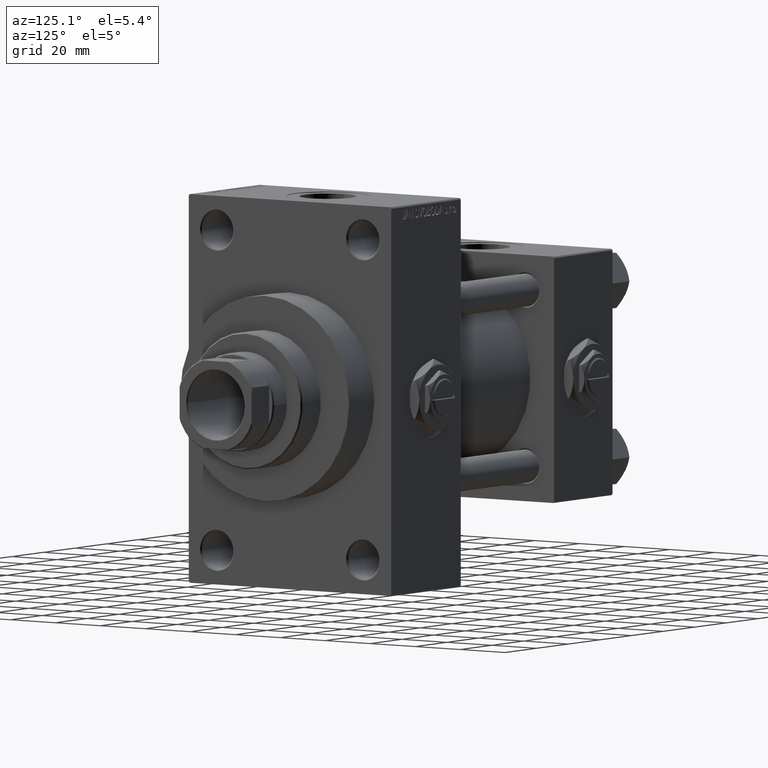
[diagram: clean part render]
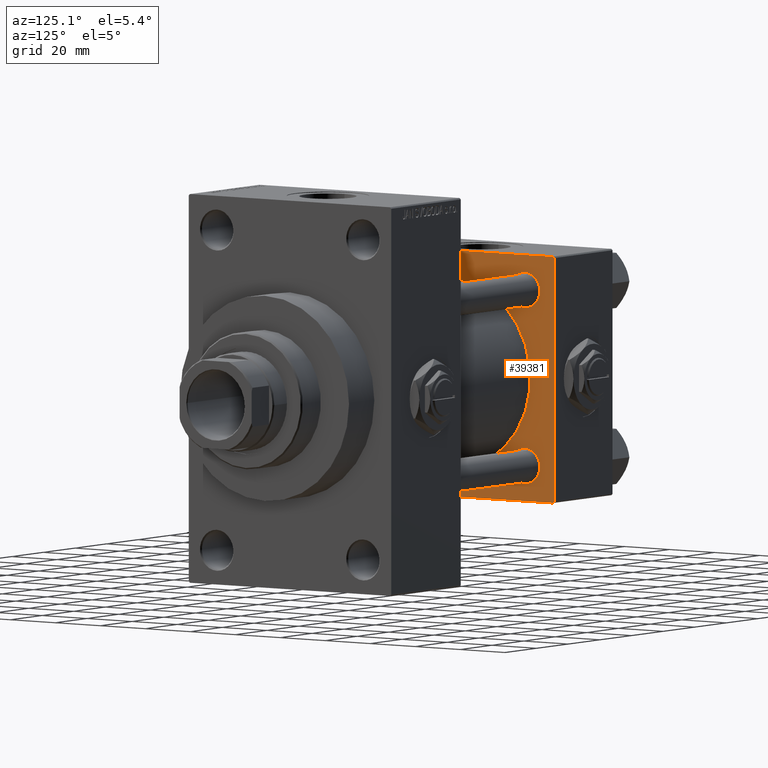
[diagram: same view with one face highlighted and labeled with its STEP entity id]
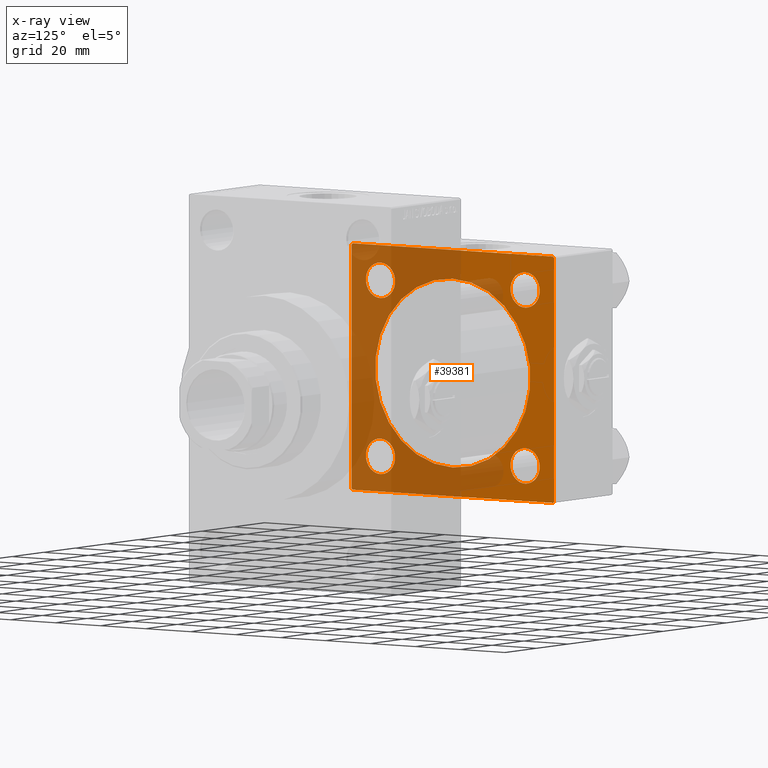
[diagram: x-ray of the same camera — body ghosted, the highlighted face saturated]
A machine part, auxiliary view. The second image highlights one B-rep face of the part: STEP entity #39381.
The next image is the same camera in x-ray: the body ghosted, the highlighted face saturated — about 58% of this face is hidden behind the body in this view.
In plain terms, the highlighted planar face has unit normal (-1, 0, 0).
Its self-contained STEP definition (entity closure, byte-faithful):
#276 = CARTESIAN_POINT ( 'NONE',  ( 37.00000000000000000, 44.49999999999998579, 45.00000000000001421 ) ) ;
#332 = DIRECTION ( 'NONE',  ( 0.000000000000000000, 0.7071067811865474617, -0.7071067811865474617 ) ) ;
#711 = CARTESIAN_POINT ( 'NONE',  ( 37.00000000000000000, 32.14999999999999147, -32.15000000000000568 ) ) ;
#955 = CARTESIAN_POINT ( 'NONE',  ( 37.00000000000000000, 44.99999999999998579, -44.49999999999998579 ) ) ;
#1542 = FACE_OUTER_BOUND ( 'NONE', #41216, .T. ) ;
#1804 = CARTESIAN_POINT ( 'NONE',  ( 37.00000000000000000, 32.14999999999999147, 32.15000000000000568 ) ) ;
#2076 = DIRECTION ( 'NONE',  ( -1.000000000000000000, 0.000000000000000000, -0.000000000000000000 ) ) ;
#2437 = CARTESIAN_POINT ( 'NONE',  ( 37.00000000000000000, -45.00000000000000711, 44.49999999999997158 ) ) ;
#2725 = EDGE_LOOP ( 'NONE', ( #34363, #32681 ) ) ;
#3199 = VERTEX_POINT ( 'NONE', #10702 ) ;
#3589 = EDGE_LOOP ( 'NONE', ( #41113, #38218 ) ) ;
#3718 = DIRECTION ( 'NONE',  ( -1.000000000000000000, 0.000000000000000000, -0.000000000000000000 ) ) ;
#3759 = CARTESIAN_POINT ( 'NONE',  ( 37.00000000000000000, 32.14999999999999147, -38.65000000000004121 ) ) ;
#4184 = VECTOR ( 'NONE', #18745, 1000.000000000000000 ) ;
#4346 = DIRECTION ( 'NONE',  ( 0.000000000000000000, 0.000000000000000000, 1.000000000000000000 ) ) ;
#4747 = CARTESIAN_POINT ( 'NONE',  ( 37.00000000000000000, 44.99999999999998579, 44.50000000000001421 ) ) ;
#5103 = DIRECTION ( 'NONE',  ( -1.000000000000000000, 0.000000000000000000, -0.000000000000000000 ) ) ;
#5215 = CARTESIAN_POINT ( 'NONE',  ( 37.00000000000000000, -32.14999999999997726, 32.15000000000001279 ) ) ;
#5238 = AXIS2_PLACEMENT_3D ( 'NONE', #31775, #5103, #17060 ) ;
#6286 = VERTEX_POINT ( 'NONE', #25713 ) ;
#6295 = VERTEX_POINT ( 'NONE', #3759 ) ;
#6473 = CIRCLE ( 'NONE', #38325, 6.500000000000005329 ) ;
#6551 = CIRCLE ( 'NONE', #34409, 6.500000000000033751 ) ;
#6709 = DIRECTION ( 'NONE',  ( 1.000000000000000000, -0.000000000000000000, 0.000000000000000000 ) ) ;
#6851 = EDGE_CURVE ( 'NONE', #3199, #33724, #34492, .T. ) ;
#7254 = CIRCLE ( 'NONE', #32703, 6.500000000000033751 ) ;
#7428 = EDGE_CURVE ( 'NONE', #23024, #24940, #10418, .T. ) ;
#9331 = EDGE_CURVE ( 'NONE', #24940, #23024, #35208, .T. ) ;
#9556 = VERTEX_POINT ( 'NONE', #40896 ) ;
#9776 = DIRECTION ( 'NONE',  ( 0.000000000000000000, 0.000000000000000000, 1.000000000000000000 ) ) ;
#10203 = ORIENTED_EDGE ( 'NONE', *, *, #43654, .F. ) ;
#10418 = CIRCLE ( 'NONE', #16802, 34.50000000000000000 ) ;
#10494 = PLANE ( 'NONE',  #35992 ) ;
#10702 = CARTESIAN_POINT ( 'NONE',  ( 37.00000000000000000, -45.00000000000000000, -44.49999999999995737 ) ) ;
#10864 = ORIENTED_EDGE ( 'NONE', *, *, #40112, .T. ) ;
#11170 = CARTESIAN_POINT ( 'NONE',  ( 37.00000000000000000, -45.00000000000000711, 44.49999999999997158 ) ) ;
#11666 = DIRECTION ( 'NONE',  ( 0.000000000000000000, -1.000000000000000000, -1.541976423090495387E-16 ) ) ;
#12189 = DIRECTION ( 'NONE',  ( -1.000000000000000000, 0.000000000000000000, -0.000000000000000000 ) ) ;
#12249 = ORIENTED_EDGE ( 'NONE', *, *, #24953, .T. ) ;
#12431 = CARTESIAN_POINT ( 'NONE',  ( 37.00000000000000000, -2.602085213965210642E-15, 34.50000000000000000 ) ) ;
#12761 = FACE_BOUND ( 'NONE', #23045, .T. ) ;
#12799 = CARTESIAN_POINT ( 'NONE',  ( 37.00000000000000000, -32.14999999999997726, 32.15000000000001279 ) ) ;
#13025 = DIRECTION ( 'NONE',  ( -1.000000000000000000, 0.000000000000000000, -0.000000000000000000 ) ) ;
#13162 = DIRECTION ( 'NONE',  ( -0.000000000000000000, -0.7071067811865425767, -0.7071067811865524577 ) ) ;
#13447 = VERTEX_POINT ( 'NONE', #26090 ) ;
#13751 = CARTESIAN_POINT ( 'NONE',  ( 37.00000000000000000, 32.14999999999999147, 32.15000000000000568 ) ) ;
#13971 = ORIENTED_EDGE ( 'NONE', *, *, #18352, .F. ) ;
#14424 = CIRCLE ( 'NONE', #28797, 6.500000000000033751 ) ;
#15149 = CARTESIAN_POINT ( 'NONE',  ( 37.00000000000000000, 44.99999999999998579, 45.00000000000001421 ) ) ;
#15585 = CIRCLE ( 'NONE', #5238, 6.500000000000005329 ) ;
#16023 = ORIENTED_EDGE ( 'NONE', *, *, #33968, .T. ) ;
#16294 = CIRCLE ( 'NONE', #47321, 6.500000000000005329 ) ;
#16607 = CARTESIAN_POINT ( 'NONE',  ( 37.00000000000000000, -32.14999999999997726, -25.65000000000000568 ) ) ;
#16802 = AXIS2_PLACEMENT_3D ( 'NONE', #37871, #6709, #29393 ) ;
#17060 = DIRECTION ( 'NONE',  ( 0.000000000000000000, 0.000000000000000000, 1.000000000000000000 ) ) ;
#17193 = CARTESIAN_POINT ( 'NONE',  ( 37.00000000000000000, -44.49999999999995737, 45.00000000000000000 ) ) ;
#18114 = VECTOR ( 'NONE', #45394, 1000.000000000000114 ) ;
#18132 = EDGE_CURVE ( 'NONE', #29113, #46003, #15585, .T. ) ;
#18245 = LINE ( 'NONE', #22983, #4184 ) ;
#18292 = CARTESIAN_POINT ( 'NONE',  ( 37.00000000000000000, -44.49999999999998579, -45.00000000000000000 ) ) ;
#18352 = EDGE_CURVE ( 'NONE', #9556, #33724, #26498, .T. ) ;
#18622 = CARTESIAN_POINT ( 'NONE',  ( 37.00000000000000000, 32.14999999999999147, 25.64999999999997016 ) ) ;
#18720 = CARTESIAN_POINT ( 'NONE',  ( 37.00000000000000000, 0.000000000000000000, 0.000000000000000000 ) ) ;
#18739 = LINE ( 'NONE', #276, #18114 ) ;
#18745 = DIRECTION ( 'NONE',  ( 0.000000000000000000, 7.709882115452476934E-17, -1.000000000000000000 ) ) ;
#18941 = VERTEX_POINT ( 'NONE', #17193 ) ;
#19569 = CARTESIAN_POINT ( 'NONE',  ( 37.00000000000000000, -32.14999999999997726, 25.65000000000000568 ) ) ;
#20683 = CIRCLE ( 'NONE', #37393, 6.500000000000033751 ) ;
#21027 = DIRECTION ( 'NONE',  ( 0.000000000000000000, 0.000000000000000000, 1.000000000000000000 ) ) ;
#21243 = FACE_BOUND ( 'NONE', #2725, .T. ) ;
#22349 = EDGE_CURVE ( 'NONE', #49144, #18941, #45820, .T. ) ;
#22983 = CARTESIAN_POINT ( 'NONE',  ( 37.00000000000000000, -45.00000000000000711, 45.00000000000000000 ) ) ;
#23024 = VERTEX_POINT ( 'NONE', #45895 ) ;
#23045 = EDGE_LOOP ( 'NONE', ( #39307, #41051 ) ) ;
#24035 = CARTESIAN_POINT ( 'NONE',  ( 37.00000000000000000, 44.49999999999998579, 45.00000000000001421 ) ) ;
#24280 = DIRECTION ( 'NONE',  ( 0.000000000000000000, 0.000000000000000000, 1.000000000000000000 ) ) ;
#24736 = ORIENTED_EDGE ( 'NONE', *, *, #7428, .F. ) ;
#24940 = VERTEX_POINT ( 'NONE', #12431 ) ;
#24953 = EDGE_CURVE ( 'NONE', #9556, #26576, #38622, .T. ) ;
#25461 = DIRECTION ( 'NONE',  ( -0.000000000000000000, 0.000000000000000000, 1.000000000000000000 ) ) ;
#25713 = CARTESIAN_POINT ( 'NONE',  ( 37.00000000000000000, 32.14999999999999147, 38.65000000000004121 ) ) ;
#26090 = CARTESIAN_POINT ( 'NONE',  ( 37.00000000000000000, 32.14999999999999147, -25.64999999999997016 ) ) ;
#26498 = LINE ( 'NONE', #41700, #28262 ) ;
#26509 = CARTESIAN_POINT ( 'NONE',  ( 37.00000000000000000, 44.99999999999998579, -44.49999999999995737 ) ) ;
#26576 = VERTEX_POINT ( 'NONE', #26509 ) ;
#27030 = VERTEX_POINT ( 'NONE', #32644 ) ;
#27395 = DIRECTION ( 'NONE',  ( 0.000000000000000000, 0.000000000000000000, 1.000000000000000000 ) ) ;
#27574 = VERTEX_POINT ( 'NONE', #4747 ) ;
#27943 = VECTOR ( 'NONE', #332, 1000.000000000000114 ) ;
#27972 = FACE_BOUND ( 'NONE', #38288, .T. ) ;
#28235 = ORIENTED_EDGE ( 'NONE', *, *, #22349, .T. ) ;
#28262 = VECTOR ( 'NONE', #46172, 1000.000000000000000 ) ;
#28793 = CIRCLE ( 'NONE', #33578, 6.500000000000005329 ) ;
#28797 = AXIS2_PLACEMENT_3D ( 'NONE', #44980, #37769, #4346 ) ;
#28893 = CARTESIAN_POINT ( 'NONE',  ( 37.00000000000000000, 44.99999999999998579, 45.00000000000001421 ) ) ;
#29113 = VERTEX_POINT ( 'NONE', #43980 ) ;
#29200 = DIRECTION ( 'NONE',  ( -1.000000000000000000, 0.000000000000000000, -0.000000000000000000 ) ) ;
#29393 = DIRECTION ( 'NONE',  ( 0.000000000000000000, 0.000000000000000000, 1.000000000000000000 ) ) ;
#29535 = EDGE_CURVE ( 'NONE', #27574, #49144, #18739, .T. ) ;
#29611 = DIRECTION ( 'NONE',  ( 0.000000000000000000, 0.000000000000000000, -1.000000000000000000 ) ) ;
#29617 = ORIENTED_EDGE ( 'NONE', *, *, #41345, .T. ) ;
#30685 = ORIENTED_EDGE ( 'NONE', *, *, #29535, .T. ) ;
#30902 = DIRECTION ( 'NONE',  ( 0.000000000000000000, 0.000000000000000000, 1.000000000000000000 ) ) ;
#31775 = CARTESIAN_POINT ( 'NONE',  ( 37.00000000000000000, -32.14999999999997726, -32.15000000000001279 ) ) ;
#31838 = CARTESIAN_POINT ( 'NONE',  ( 37.00000000000000000, -44.49999999999995737, -45.00000000000000000 ) ) ;
#32453 = VERTEX_POINT ( 'NONE', #11170 ) ;
#32644 = CARTESIAN_POINT ( 'NONE',  ( 37.00000000000000000, -32.14999999999997726, 38.65000000000001990 ) ) ;
#32681 = ORIENTED_EDGE ( 'NONE', *, *, #42030, .T. ) ;
#32703 = AXIS2_PLACEMENT_3D ( 'NONE', #711, #48647, #30902 ) ;
#32983 = ORIENTED_EDGE ( 'NONE', *, *, #44392, .T. ) ;
#33117 = LINE ( 'NONE', #28893, #47141 ) ;
#33578 = AXIS2_PLACEMENT_3D ( 'NONE', #5215, #12189, #27395 ) ;
#33724 = VERTEX_POINT ( 'NONE', #31838 ) ;
#33968 = EDGE_CURVE ( 'NONE', #6286, #36701, #20683, .T. ) ;
#34363 = ORIENTED_EDGE ( 'NONE', *, *, #48225, .T. ) ;
#34409 = AXIS2_PLACEMENT_3D ( 'NONE', #1804, #13025, #9776 ) ;
#34492 = LINE ( 'NONE', #18292, #27943 ) ;
#34711 = DIRECTION ( 'NONE',  ( 0.000000000000000000, 0.000000000000000000, 1.000000000000000000 ) ) ;
#35208 = CIRCLE ( 'NONE', #39976, 34.50000000000000000 ) ;
#35714 = FACE_BOUND ( 'NONE', #38791, .T. ) ;
#35992 = AXIS2_PLACEMENT_3D ( 'NONE', #18720, #29200, #25461 ) ;
#36199 = DIRECTION ( 'NONE',  ( -1.000000000000000000, 0.000000000000000000, -0.000000000000000000 ) ) ;
#36349 = LINE ( 'NONE', #2437, #46253 ) ;
#36701 = VERTEX_POINT ( 'NONE', #18622 ) ;
#37239 = EDGE_CURVE ( 'NONE', #6295, #13447, #7254, .T. ) ;
#37321 = ORIENTED_EDGE ( 'NONE', *, *, #9331, .F. ) ;
#37393 = AXIS2_PLACEMENT_3D ( 'NONE', #13751, #36199, #43661 ) ;
#37769 = DIRECTION ( 'NONE',  ( -1.000000000000000000, 0.000000000000000000, -0.000000000000000000 ) ) ;
#37776 = EDGE_CURVE ( 'NONE', #13447, #6295, #14424, .T. ) ;
#37871 = CARTESIAN_POINT ( 'NONE',  ( 37.00000000000000000, -2.602085213965210642E-15, 0.000000000000000000 ) ) ;
#38218 = ORIENTED_EDGE ( 'NONE', *, *, #37776, .T. ) ;
#38288 = EDGE_LOOP ( 'NONE', ( #10864, #16023 ) ) ;
#38325 = AXIS2_PLACEMENT_3D ( 'NONE', #40694, #3718, #21027 ) ;
#38622 = LINE ( 'NONE', #955, #45110 ) ;
#38791 = EDGE_LOOP ( 'NONE', ( #37321, #24736 ) ) ;
#38866 = DIRECTION ( 'NONE',  ( -0.000000000000000000, 0.7071067811865474617, 0.7071067811865474617 ) ) ;
#39307 = ORIENTED_EDGE ( 'NONE', *, *, #18132, .T. ) ;
#39381 = ADVANCED_FACE ( 'NONE', ( #12761, #43901, #21243, #27972, #35714, #1542 ), #10494, .F. ) ;
#39976 = AXIS2_PLACEMENT_3D ( 'NONE', #41939, #45929, #34711 ) ;
#40083 = ORIENTED_EDGE ( 'NONE', *, *, #6851, .T. ) ;
#40112 = EDGE_CURVE ( 'NONE', #36701, #6286, #6551, .T. ) ;
#40694 = CARTESIAN_POINT ( 'NONE',  ( 37.00000000000000000, -32.14999999999997726, -32.15000000000001279 ) ) ;
#40896 = CARTESIAN_POINT ( 'NONE',  ( 37.00000000000000000, 44.49999999999998579, -44.99999999999998579 ) ) ;
#41051 = ORIENTED_EDGE ( 'NONE', *, *, #41239, .T. ) ;
#41113 = ORIENTED_EDGE ( 'NONE', *, *, #37239, .T. ) ;
#41216 = EDGE_LOOP ( 'NONE', ( #13971, #12249, #10203, #30685, #28235, #29617, #32983, #40083 ) ) ;
#41239 = EDGE_CURVE ( 'NONE', #46003, #29113, #6473, .T. ) ;
#41345 = EDGE_CURVE ( 'NONE', #18941, #32453, #36349, .T. ) ;
#41700 = CARTESIAN_POINT ( 'NONE',  ( 37.00000000000000000, 44.99999999999998579, -44.99999999999998579 ) ) ;
#41919 = VECTOR ( 'NONE', #11666, 1000.000000000000000 ) ;
#41939 = CARTESIAN_POINT ( 'NONE',  ( 37.00000000000000000, -2.602085213965210642E-15, 0.000000000000000000 ) ) ;
#42030 = EDGE_CURVE ( 'NONE', #27030, #43337, #28793, .T. ) ;
#43337 = VERTEX_POINT ( 'NONE', #19569 ) ;
#43654 = EDGE_CURVE ( 'NONE', #27574, #26576, #33117, .T. ) ;
#43661 = DIRECTION ( 'NONE',  ( 0.000000000000000000, 0.000000000000000000, 1.000000000000000000 ) ) ;
#43901 = FACE_BOUND ( 'NONE', #3589, .T. ) ;
#43980 = CARTESIAN_POINT ( 'NONE',  ( 37.00000000000000000, -32.14999999999997726, -38.65000000000001990 ) ) ;
#44392 = EDGE_CURVE ( 'NONE', #32453, #3199, #18245, .T. ) ;
#44980 = CARTESIAN_POINT ( 'NONE',  ( 37.00000000000000000, 32.14999999999999147, -32.15000000000000568 ) ) ;
#45110 = VECTOR ( 'NONE', #38866, 1000.000000000000114 ) ;
#45394 = DIRECTION ( 'NONE',  ( 0.000000000000000000, -0.7071067811865474617, 0.7071067811865474617 ) ) ;
#45820 = LINE ( 'NONE', #15149, #41919 ) ;
#45895 = CARTESIAN_POINT ( 'NONE',  ( 37.00000000000000000, 1.622946243093158675E-15, -34.50000000000000000 ) ) ;
#45929 = DIRECTION ( 'NONE',  ( 1.000000000000000000, -0.000000000000000000, 0.000000000000000000 ) ) ;
#46003 = VERTEX_POINT ( 'NONE', #16607 ) ;
#46172 = DIRECTION ( 'NONE',  ( 0.000000000000000000, -1.000000000000000000, -1.541976423090495633E-16 ) ) ;
#46253 = VECTOR ( 'NONE', #13162, 1000.000000000000114 ) ;
#47141 = VECTOR ( 'NONE', #29611, 1000.000000000000000 ) ;
#47321 = AXIS2_PLACEMENT_3D ( 'NONE', #12799, #2076, #24280 ) ;
#48225 = EDGE_CURVE ( 'NONE', #43337, #27030, #16294, .T. ) ;
#48647 = DIRECTION ( 'NONE',  ( -1.000000000000000000, 0.000000000000000000, -0.000000000000000000 ) ) ;
#49144 = VERTEX_POINT ( 'NONE', #24035 ) ;